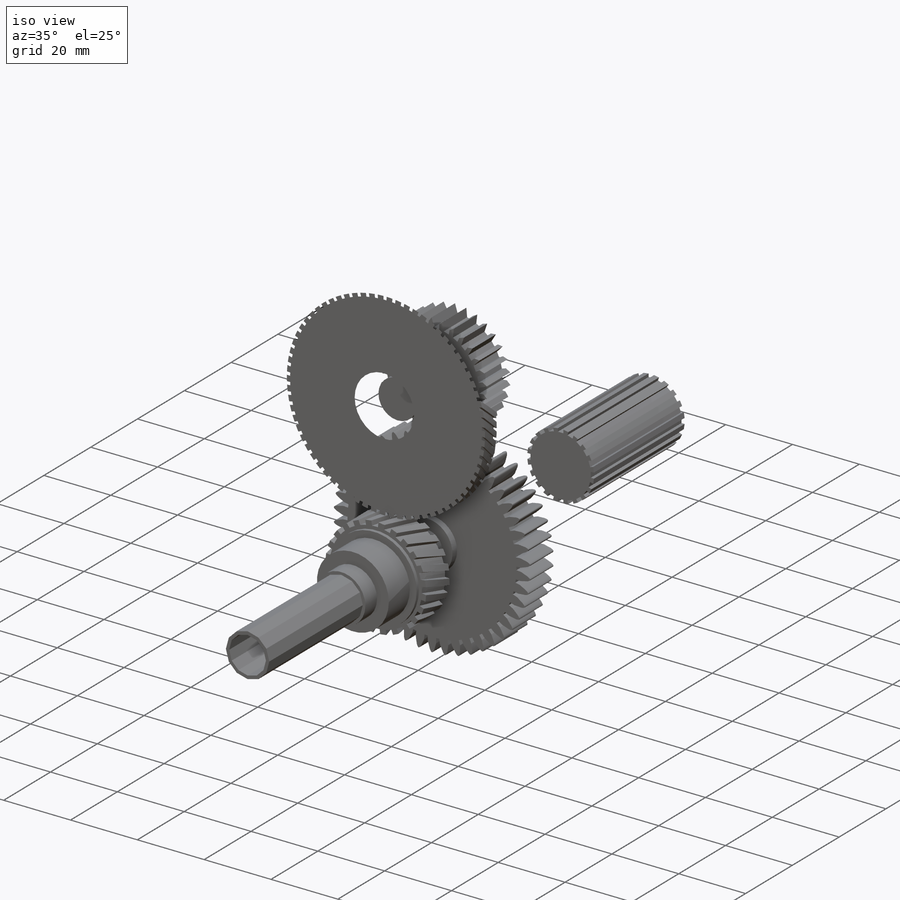
[diagram: iso view]
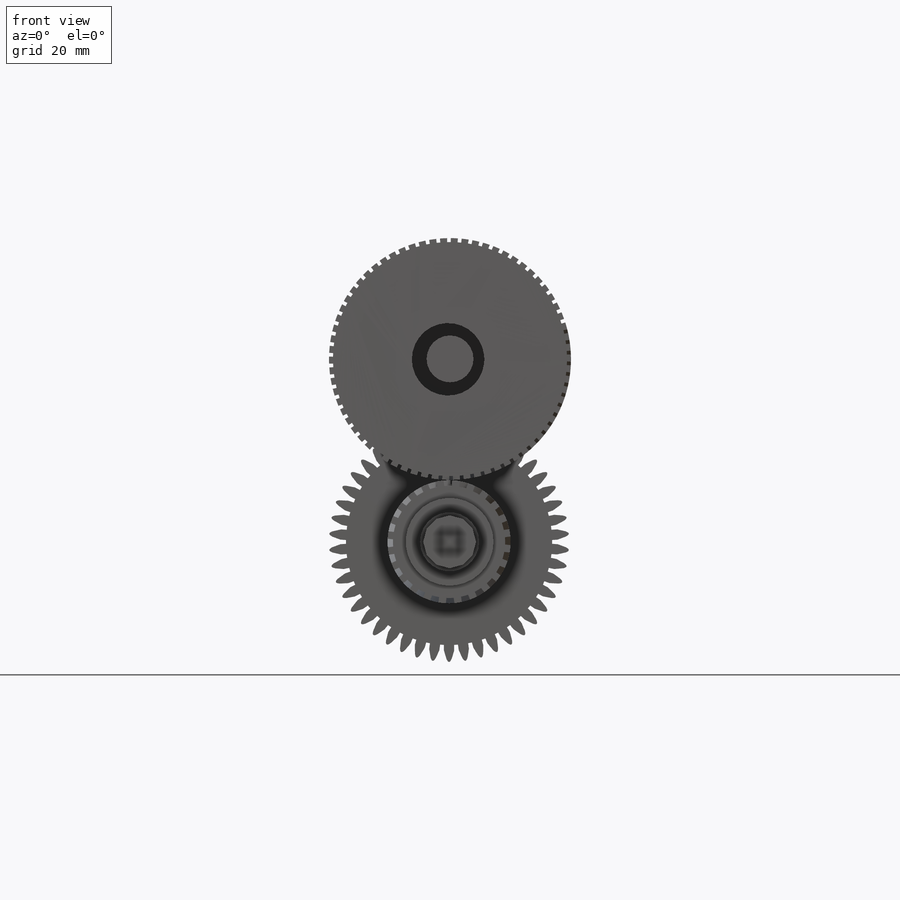
[diagram: front view]
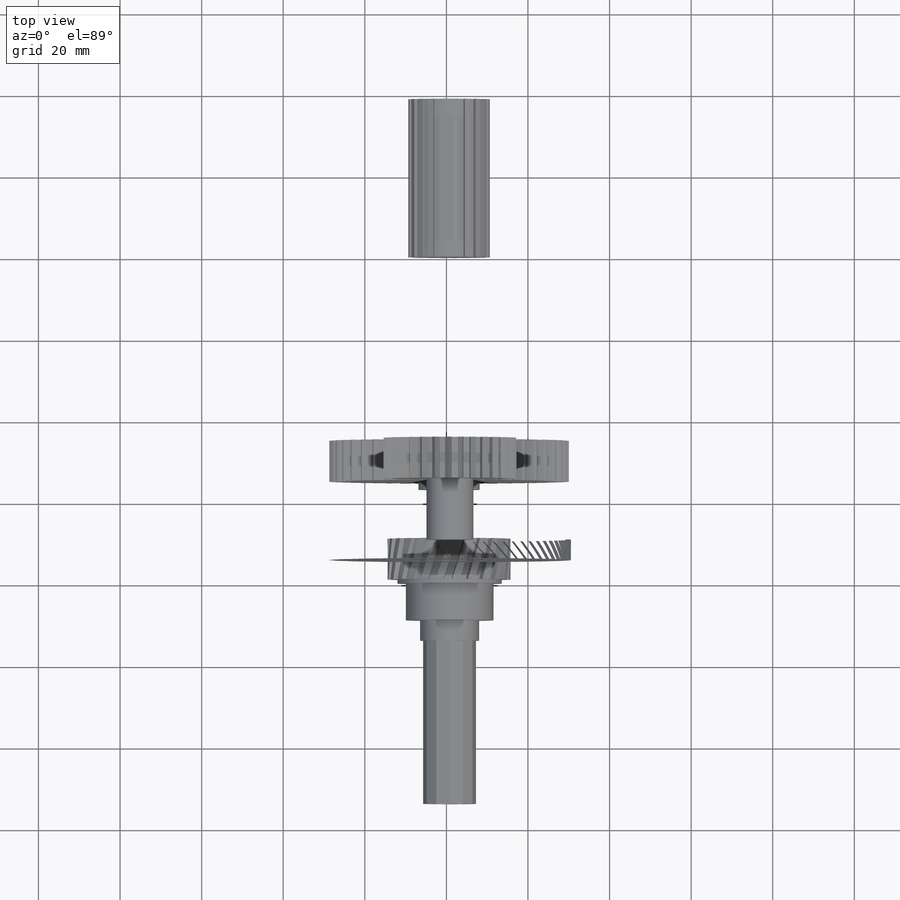
[diagram: top view]
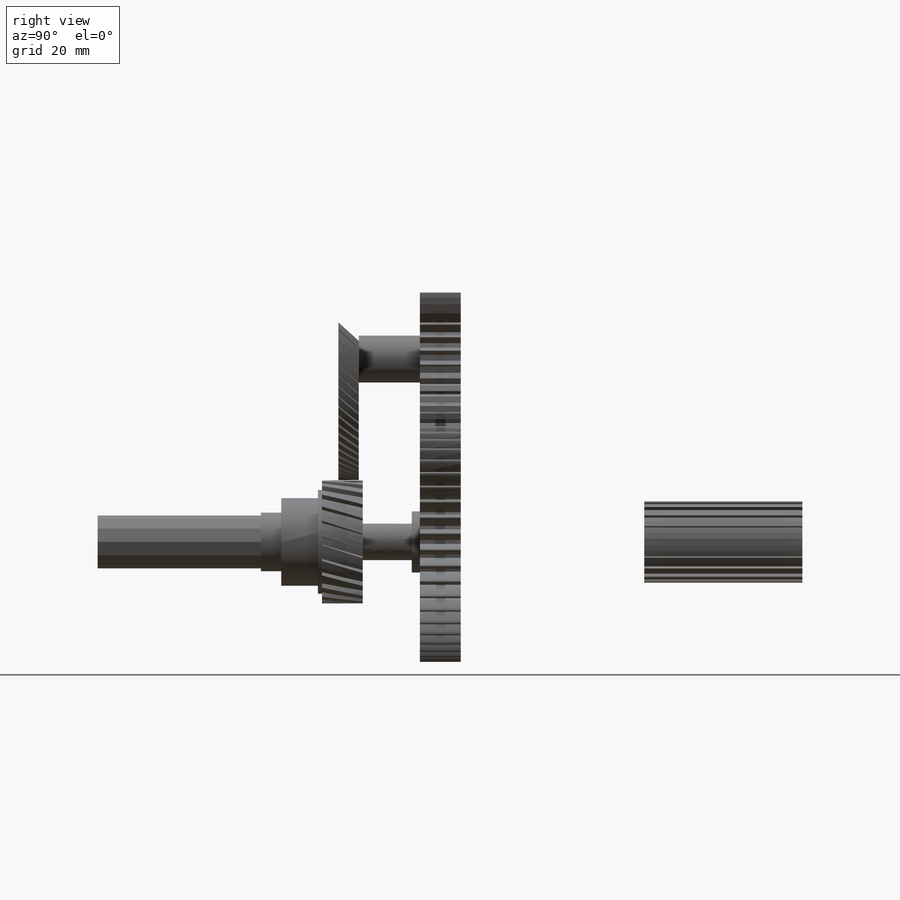
[diagram: right view]
SOLIDWORKS PART (.sldprt)
format: sldprt  version: not decoded by parser v0  size: 11,680,256 bytes
history: native  units: mm
features: sketch x80, extrude x58, plane x47, pattern_circular x17, cut_extrude x15, material x1 (+11 scaffold rows collapsed)
feature tree (229):
  scaffold x11  (default folders/planes/origin — collapsed)
  material  "Material <not specified>"
  sketch  "Sketch1"  dims[D1=20.0mm]
  extrude  "Boss-Extrude4"  Depth=40mm
  sketch  "Sketch5"
  cut_extrude  "Cut-Extrude5"  Depth=40mm
  pattern_circular  "CirPattern4"  Count=20 Angle=360deg
  plane  "Plane3"
  sketch  "Sketch8"
  extrude  "Boss-Extrude5"  Depth=10mm
  plane  "Plane4"
  sketch  "Sketch9"
  extrude  "Boss-Extrude6"  Depth=15mm
  plane  "Plane5"
  sketch  "Sketch10"
  sketch  "Sketch12"
  pattern_circular  "CirPattern6"  Count=16 Angle=22.5deg
  sketch  "Sketch16"
  extrude  "Boss-Extrude7"  Depth=20mm
  plane  "Plane6"
  sketch  "Sketch18"
  extrude  "Boss-Extrude8"  Depth=10mm
  sketch  "Sketch19"
  extrude  "Boss-Extrude9"  Depth=10mm
  pattern_circular  "CirPattern7"  Count=46 Angle=7.826087deg
  plane  "Plane7"  Offset=10mm
  sketch  "Sketch22"
  extrude  "Boss-Extrude10"  Depth=10mm
  plane  "Plane8"
  sketch  "Sketch24"  dims[D1=15.0mm]
  extrude  "Boss-Extrude12"  Depth=2mm
  sketch  "Sketch25"
  extrude  "Boss-Extrude13"  Depth=12mm
  sketch  "Sketch26"  dims[D1=27.5mm]
  extrude  "Boss-Extrude14"  Depth=10mm
  sketch  "Sketch27"
  extrude  "Boss-Extrude15"  Depth=10mm
  pattern_circular  "CirPattern8"  Count=24 Angle=360deg
  plane  "Plane9"
  sketch  "Sketch31"
  extrude  "Boss-Extrude16"  Depth=10mm
  plane  "Plane10"
  sketch  "Sketch34"
  cut_extrude  "Cut-Extrude11"  Depth=9mm
  plane  "Plane11"
  plane  "Plane13"
  sketch  "Sketch40"
  extrude  "Boss-Extrude22"  Depth=45mm
  plane  "Plane14"
  sketch  "Sketch41"
  cut_extrude  "Cut-Extrude14"  Depth=40mm
  plane  "Plane15"  Offset=10mm
  sketch  "Sketch44"
  cut_extrude  "Cut-Extrude15"  Depth=40mm
  plane  "Plane16"
  sketch  "Sketch45"
  extrude  "Boss-Extrude23"  Depth=41mm
  sketch  "Sketch49"
  extrude  "Boss-Extrude25"  Depth=10mm
  sketch  "Sketch50"  dims[D1=~6.631716mm D2=~4.825442mm]
  extrude  "Boss-Extrude27"  Depth=10mm
  pattern_circular  "CirPattern25"  Count=30 Angle=360deg
  sketch  "Sketch57"
  extrude  "Boss-Extrude32"  Depth=15mm
  sketch  "Sketch58"
  sketch  "Sketch59"
  pattern_circular  "CirPattern30"  Count=20 Angle=360deg
  sketch  "Sketch61"
  extrude  "Boss-Extrude33"  Depth=15mm
  sketch  "Sketch63"  dims[D1=0.9mm]
  extrude  "Boss-Extrude35"  Depth=15mm
  pattern_circular  "CirPattern35"  Count=36 Angle=360deg
  sketch  "Sketch65"
  extrude  "Boss-Extrude36"  Depth=105mm
  plane  "Plane17"
  sketch  "Sketch69"
  extrude  "Boss-Extrude37"  Depth=17.5mm
  plane  "Plane18"
  sketch  "Sketch70"
  cut_extrude  "Cut-Extrude16"  Depth=15mm
  pattern_circular  "CirPattern42"  Count=20 Angle=360deg
  sketch  "Sketch71"
  extrude  "Boss-Extrude39"  Depth=5mm
  sketch  "Sketch73"
  extrude  "Boss-Extrude40"  Depth=5mm
  pattern_circular  "CirPattern44"  Count=80 Angle=360deg
  plane  "Plane19"
  sketch  "Sketch77"
  extrude  "Boss-Extrude42"  Depth=17.5mm
  sketch  "Sketch78"
  cut_extrude  "Cut-Extrude17"  Depth=5mm
  plane  "Plane20"  Offset=2mm
  sketch  "Sketch79"
  extrude  "Boss-Extrude43"  Depth=45mm
  sketch  "Sketch80"
  cut_extrude  "Cut-Extrude18"  Depth=45mm
  sketch  "Sketch81"
  extrude  "Boss-Extrude44"  Depth=0.5mm
  plane  "Plane21"
  sketch  "Sketch82"
  extrude  "Boss-Extrude45"  Depth=7.5mm
  sketch  "Sketch83"
  extrude  "Boss-Extrude46"  Depth=7.5mm
  pattern_circular  "CirPattern51"  Count=38 Angle=360deg
  plane  "Plane22"
  plane  "Plane23"  Offset=5mm
  sketch  "Sketch85"
  extrude  "Boss-Extrude47"  Depth=5mm
  plane  "Plane24"
  sketch  "Sketch87"
  extrude  "Boss-Extrude48"  Depth=5mm
  pattern_circular  "CirPattern52"  Count=38 Angle=360deg
  plane  "Plane25"
  sketch  "Sketch88"
  extrude  "Boss-Extrude49"  Depth=15mm
  plane  "Plane26"
  sketch  "Sketch89"  dims[D1=~59.311119mm]
  extrude  "Boss-Extrude52"  Depth=5mm
  sketch  "Sketch92"
  cut_extrude  "Cut-Extrude19"  Depth=5mm
  pattern_circular  "CirPattern54"  Count=70 Angle=360deg
  plane  "Plane27"
  sketch  "Sketch96"
  extrude  "Boss-Extrude53"  Depth=2mm
  sketch  "Sketch97"
  extrude  "Boss-Extrude54"  Depth=2mm
  plane  "Plane28"
  sketch  "Sketch100"
  extrude  "Boss-Extrude55"  Depth=10mm
  sketch  "Sketch102"
  extrude  "Boss-Extrude56"  Depth=2.5mm
  sketch  "Sketch104"
  extrude  "Boss-Extrude58"  Depth=10mm
  sketch  "Sketch105"
  extrude  "Boss-Extrude59"  Depth=10mm
  pattern_circular  "CirPattern58"  Count=20 Angle=360deg
  sketch  "Sketch106"
  extrude  "Boss-Extrude60"  Depth=65mm
  sketch  "Sketch110"
  extrude  "Boss-Extrude69"  Depth=20mm
  plane  "Plane31"
  sketch  "Sketch115"
  cut_extrude  "Cut-Extrude26"  Depth=20mm
  pattern_circular  "CirPattern86"  Count=24 Angle=360deg
  sketch  "Sketch116"
  extrude  "Boss-Extrude70"  Depth=20mm
  sketch  "Sketch117"
  extrude  "Boss-Extrude71"  Depth=20mm
  pattern_circular  "CirPattern88"  Count=24 Angle=360deg
  sketch  "Sketch134"
  extrude  "Boss-Extrude84"  Depth=10mm
  plane  "Plane45"
  sketch  "Sketch135"
  extrude  "Boss-Extrude85"  Depth=30mm
  plane  "Plane46"
  sketch  "Sketch138"
  cut_extrude  "Cut-Extrude28"  Depth=20mm
  pattern_circular  "CirPattern92"  Count=15 Angle=360deg
  plane  "Plane47"
  sketch  "Sketch139"
  cut_extrude  "Cut-Extrude33"  Depth=5mm
  plane  "Plane48"
  plane  "Plane49"  Offset=20mm
  sketch  "Sketch140"
  extrude  "Boss-Extrude86"  Depth=15mm
  plane  "Plane50"
  sketch  "Sketch143"  dims[D1=2.5mm]
  extrude  "Boss-Extrude87"  Depth=12.5mm
  sketch  "Sketch145"
  extrude  "Boss-Extrude88"  Depth=17mm
  sketch  "Sketch146"  dims[c1.D1=5.0mm c2.D1=12.5mm c2.D5=10.0mm c2.D6=10.0mm c2.D7=5.0mm]
  plane  "Plane51"
  plane  "Plane52"  Offset=10mm
  sketch  "Sketch147"
  extrude  "Boss-Extrude89"  Depth=5mm
  plane  "Plane53"  Offset=20mm
  sketch  "Sketch148"  dims[D1=15.0mm]
  extrude  "Boss-Extrude90"  Depth=5mm
  sketch  "Sketch150"
  cut_extrude  "Cut-Extrude34"  [1 undecoded]
  sketch  "Sketch151"
  extrude  "Boss-Extrude91"  Depth=1mm
  sketch  "Sketch152"
  extrude  "Boss-Extrude92"  Depth=1mm
  sketch  "Sketch153"
  cut_extrude  "Cut-Extrude35"  Depth=2.5mm
  sketch  "Sketch154"
  cut_extrude  "Cut-Extrude36"  Depth=5mm
  plane  "Plane33"
  sketch  "Sketch119"
  extrude  "Boss-Extrude73"  Depth=11mm
  plane  "Plane34"
  sketch  "Sketch120"
  extrude  "Boss-Extrude74"  Depth=21mm
  plane  "Plane35"
  sketch  "Sketch121"
  cut_extrude  "Cut-Extrude27"  Depth=21mm
  pattern_circular  "CirPattern89"  Count=12 Angle=360deg
  plane  "Plane36"
  sketch  "Sketch122"
  extrude  "Boss-Extrude75"  Depth=20mm
  plane  "Plane37"
  plane  "Plane38"  Offset=20mm
  sketch  "Sketch123"
  extrude  "Boss-Extrude76"  Depth=10mm
  sketch  "Sketch125"
  plane  "Plane41"
  plane  "Plane42"
  plane  "Plane43"  Offset=5mm
  sketch  "Sketch133"  dims[D1=30.0mm D2=30.0mm D3=10.0mm D4=7.5mm]
  extrude  "Boss-Extrude83"  Depth=157mm
  plane  "Plane44"
  extrude  "Boss-Extrude78"  Depth=10mm
  sketch  "Sketch126"
  extrude  "Boss-Extrude79"  Depth=10mm
  sketch  "Sketch127"
  plane  "Plane39"
  sketch  "Sketch128"
  plane  "Plane40"  Offset=0mm
decode coverage: 99 of 170 modeling features carry decoded parameters
note: ~ marks probable driven/reference dimensions
note: 1 parameter value undecoded
note: suppression state not decoded; provenance and decode notes live in map.json
